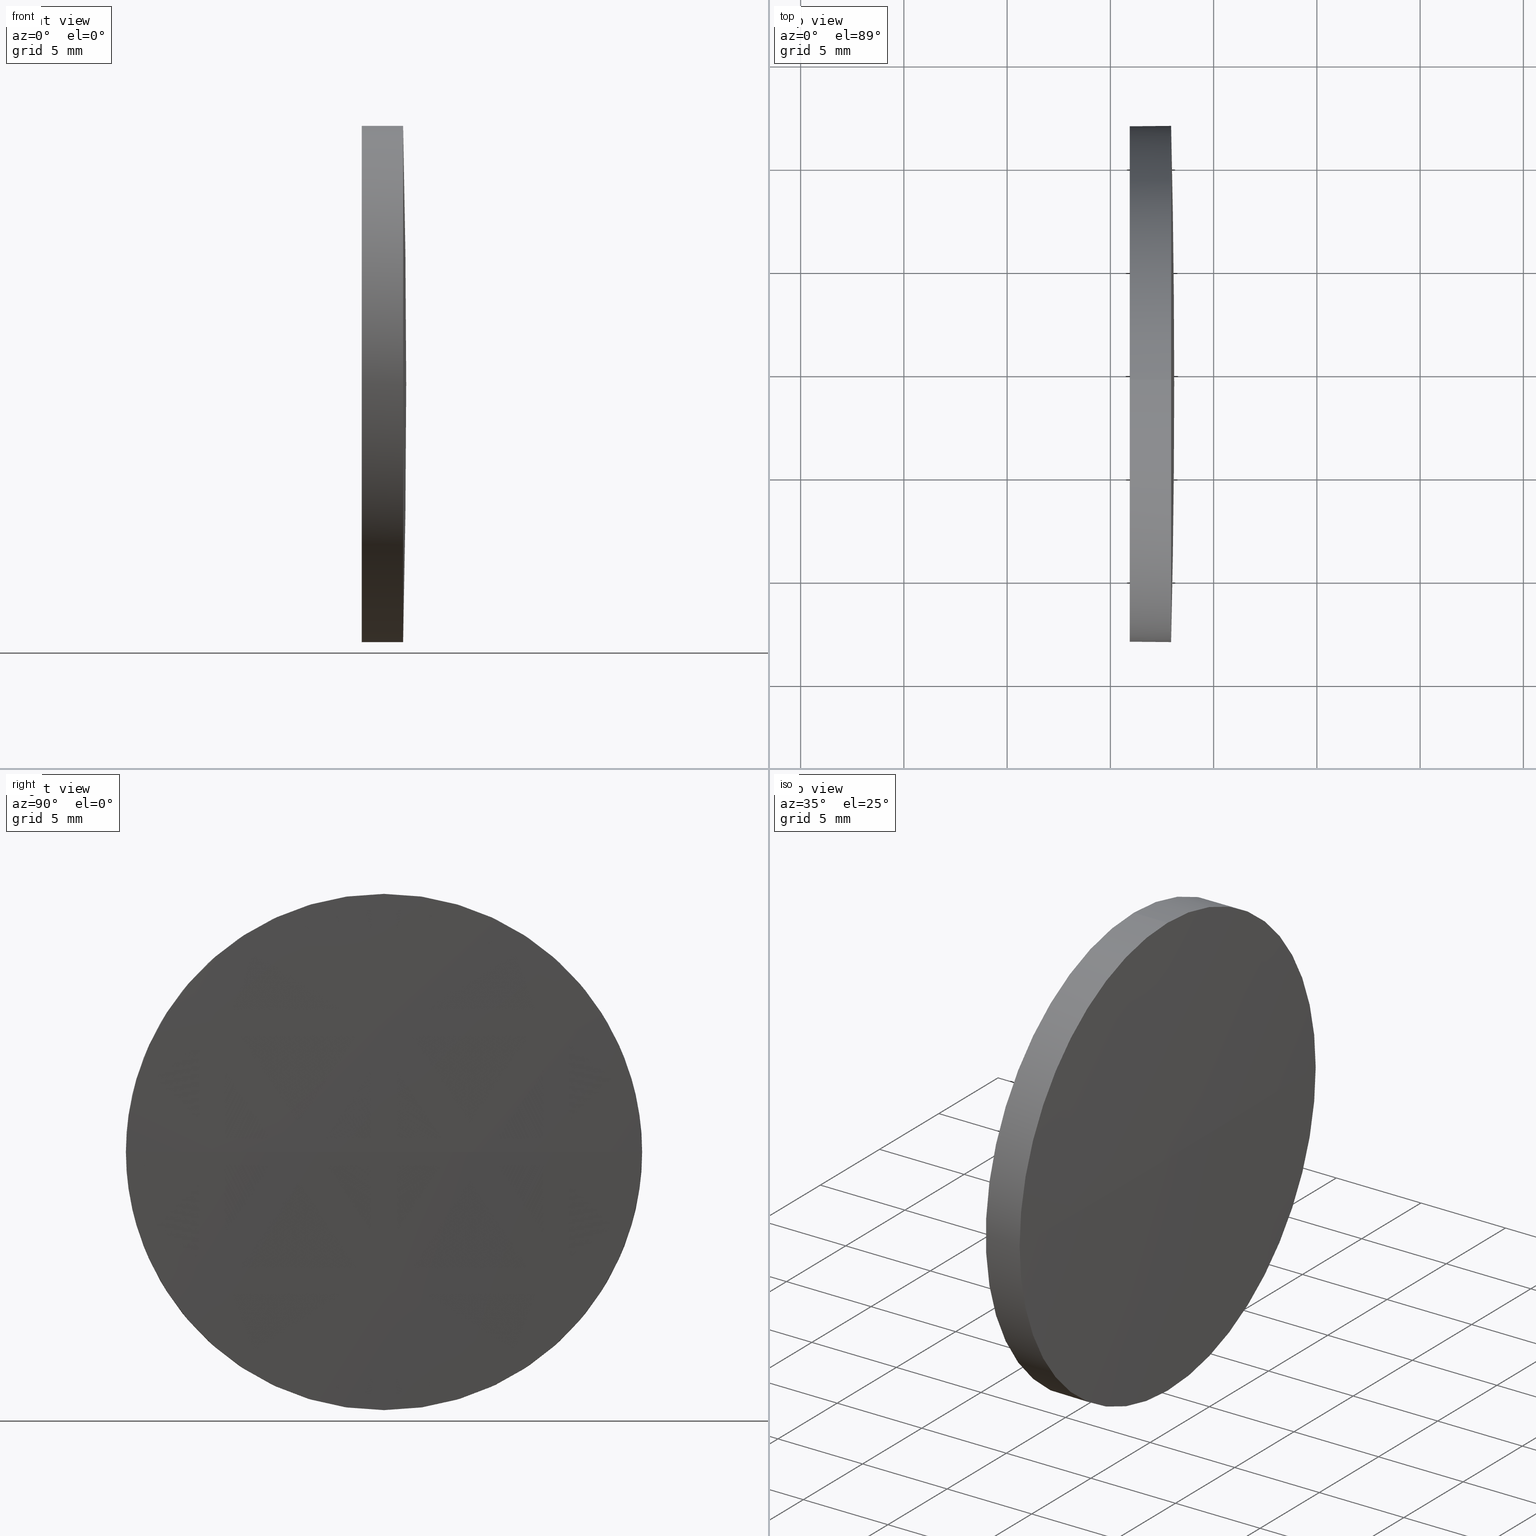
[diagram: canonical four-view strip — front | top / right | iso, engineering-drawing reading convention]
A machine part, canonical four-view strip (front | top / right | iso — engineering-drawing reading convention). The complete STEP part file that produces these views, byte-faithful:
ISO-10303-21;
HEADER;
FILE_DESCRIPTION (( 'STEP AP214' ),
    '1' );
FILE_NAME ('100226.STEP',
    '2019-05-24T05:51:30',
    ( '' ),
    ( '' ),
    'SwSTEP 2.0',
    'SolidWorks 2016',
    '' );
FILE_SCHEMA (( 'AUTOMOTIVE_DESIGN' ));
ENDSEC;

DATA;
#1 = CYLINDRICAL_SURFACE ( 'NONE', #9, 12.49999999999999600 ) ;
#2 = LINE ( 'NONE', #167, #177 ) ;
#3 = ORIENTED_EDGE ( 'NONE', *, *, #88, .T. ) ;
#4 = DIRECTION ( 'NONE',  ( 0.0000000000000000000, 0.0000000000000000000, 1.000000000000000000 ) ) ;
#5 = FACE_OUTER_BOUND ( 'NONE', #145, .T. ) ;
#6 = CARTESIAN_POINT ( 'NONE',  ( 342.9391285963631600, -50.57751368964579800, 0.0000000000000000000 ) ) ;
#7 = ORIENTED_EDGE ( 'NONE', *, *, #28, .T. ) ;
#8 = CARTESIAN_POINT ( 'NONE',  ( 338.9100210179261700, -50.57751368964579800, -12.49999999999999600 ) ) ;
#9 = AXIS2_PLACEMENT_3D ( 'NONE', #151, #165, #75 ) ;
#10 = PLANE ( 'NONE',  #51 ) ;
#11 =( LENGTH_UNIT ( ) NAMED_UNIT ( * ) SI_UNIT ( .MILLI., .METRE. ) );
#12 = EDGE_CURVE ( 'NONE', #13, #80, #130, .T. ) ;
#13 = VERTEX_POINT ( 'NONE', #74 ) ;
#14 = EDGE_CURVE ( 'NONE', #138, #103, #2, .T. ) ;
#15 = PRESENTATION_STYLE_ASSIGNMENT (( #142 ) ) ;
#16 = AXIS2_PLACEMENT_3D ( 'NONE', #90, #4, #93 ) ;
#17 = CARTESIAN_POINT ( 'NONE',  ( -177.8192047369750000, -50.57751368964469000, 0.0000000000000000000 ) ) ;
#18 = CARTESIAN_POINT ( 'NONE',  ( 340.9391285963631600, -50.57751368964579800, 0.0000000000000000000 ) ) ;
#19 = CARTESIAN_POINT ( 'NONE',  ( 342.9391285963631600, -50.57751368964579800, -12.49999999999999600 ) ) ;
#20 = ORIENTED_EDGE ( 'NONE', *, *, #162, .T. ) ;
#21 = DIRECTION ( 'NONE',  ( -1.000000000000000000, -0.0000000000000000000, -0.0000000000000000000 ) ) ;
#22 =( NAMED_UNIT ( * ) PLANE_ANGLE_UNIT ( ) SI_UNIT ( $, .RADIAN. ) );
#23 = DIRECTION ( 'NONE',  ( 0.0000000000000000000, -1.000000000000000000, -1.224646799147353200E-016 ) ) ;
#24 = LINE ( 'NONE', #8, #86 ) ;
#25 =( LENGTH_UNIT ( ) NAMED_UNIT ( * ) SI_UNIT ( .MILLI., .METRE. ) );
#26 = CARTESIAN_POINT ( 'NONE',  ( 340.9391285963631600, -50.57751368964579800, 0.0000000000000000000 ) ) ;
#27 = PRODUCT_DEFINITION_CONTEXT ( 'detailed design', #83, 'design' ) ;
#28 = EDGE_CURVE ( 'NONE', #109, #103, #32, .T. ) ;
#29 = SURFACE_STYLE_FILL_AREA ( #181 ) ;
#30 = UNCERTAINTY_MEASURE_WITH_UNIT (LENGTH_MEASURE( 1.000000000000000100E-005 ), #25, 'distance_accuracy_value', 'NONE');
#31 = AXIS2_PLACEMENT_3D ( 'NONE', #6, #91, #133 ) ;
#32 = CIRCLE ( 'NONE', #107, 12.49999999999999600 ) ;
#33 = ORIENTED_EDGE ( 'NONE', *, *, #162, .F. ) ;
#34 = CIRCLE ( 'NONE', #31, 12.49999999999999600 ) ;
#35 = DIRECTION ( 'NONE',  ( 0.0000000000000000000, -1.000000000000000000, 0.0000000000000000000 ) ) ;
#36 = DIRECTION ( 'NONE',  ( 0.0000000000000000000, 0.0000000000000000000, 1.000000000000000000 ) ) ;
#37 = ORIENTED_EDGE ( 'NONE', *, *, #58, .F. ) ;
#38 = CARTESIAN_POINT ( 'NONE',  ( 340.9391285963631600, -50.57751368964579800, 12.49999999999999600 ) ) ;
#39 =( LENGTH_UNIT ( ) NAMED_UNIT ( * ) SI_UNIT ( .MILLI., .METRE. ) );
#40 = ADVANCED_FACE ( 'NONE', ( #50 ), #1, .T. ) ;
#41 = SURFACE_SIDE_STYLE ('',( #134 ) ) ;
#42 = ORIENTED_EDGE ( 'NONE', *, *, #12, .F. ) ;
#43 = ADVANCED_FACE ( 'NONE', ( #100 ), #118, .T. ) ;
#44 =( NAMED_UNIT ( * ) SI_UNIT ( $, .STERADIAN. ) SOLID_ANGLE_UNIT ( ) );
#45 = ADVANCED_FACE ( 'NONE', ( #5 ), #72, .T. ) ;
#46 =( NAMED_UNIT ( * ) SI_UNIT ( $, .STERADIAN. ) SOLID_ANGLE_UNIT ( ) );
#47 = VERTEX_POINT ( 'NONE', #19 ) ;
#48 = PRODUCT_CONTEXT ( 'NONE', #67, 'mechanical' ) ;
#49 = EDGE_LOOP ( 'NONE', ( #56, #186, #52, #160, #164 ) ) ;
#50 = FACE_OUTER_BOUND ( 'NONE', #49, .T. ) ;
#51 = AXIS2_PLACEMENT_3D ( 'NONE', #26, #81, #115 ) ;
#52 = ORIENTED_EDGE ( 'NONE', *, *, #88, .F. ) ;
#53 = FACE_OUTER_BOUND ( 'NONE', #65, .T. ) ;
#54 = DIRECTION ( 'NONE',  ( -1.000000000000000000, -0.0000000000000000000, -0.0000000000000000000 ) ) ;
#55 = CARTESIAN_POINT ( 'NONE',  ( 342.9391285963631000, -63.07751368964461800, 0.0000000000000000000 ) ) ;
#56 = ORIENTED_EDGE ( 'NONE', *, *, #176, .T. ) ;
#57 = PRODUCT ( '100226', '100226', '', ( #48 ) ) ;
#58 = EDGE_CURVE ( 'NONE', #47, #80, #149, .T. ) ;
#59 = ORIENTED_EDGE ( 'NONE', *, *, #28, .F. ) ;
#60 = DIRECTION ( 'NONE',  ( 0.0000000000000000000, 0.0000000000000000000, 1.000000000000000000 ) ) ;
#61 = PRESENTATION_LAYER_ASSIGNMENT (  '', '', ( #135 ) ) ;
#62 = COLOUR_RGB ( '',1.000000000000000000, 1.000000000000000000, 1.000000000000000000 ) ;
#63 = DIRECTION ( 'NONE',  ( 0.0000000000000000000, 0.0000000000000000000, 1.000000000000000000 ) ) ;
#64 = ADVANCED_BREP_SHAPE_REPRESENTATION ( '100226', ( #102, #104 ), #108 ) ;
#65 = EDGE_LOOP ( 'NONE', ( #147, #70, #20, #85, #59 ) ) ;
#66 = DIRECTION ( 'NONE',  ( -1.000000000000000000, -0.0000000000000000000, -0.0000000000000000000 ) ) ;
#67 = APPLICATION_CONTEXT ( 'automotive_design' ) ;
#68 = ORIENTED_EDGE ( 'NONE', *, *, #73, .F. ) ;
#69 = DIRECTION ( 'NONE',  ( 0.0000000000000000000, 0.0000000000000000000, 1.000000000000000000 ) ) ;
#70 = ORIENTED_EDGE ( 'NONE', *, *, #58, .T. ) ;
#71 = UNCERTAINTY_MEASURE_WITH_UNIT (LENGTH_MEASURE( 1.000000000000000100E-005 ), #39, 'distance_accuracy_value', 'NONE');
#72 = SPHERICAL_SURFACE ( 'NONE', #178, 520.9083333333380800 ) ;
#73 = EDGE_CURVE ( 'NONE', #138, #127, #34, .T. ) ;
#74 = CARTESIAN_POINT ( 'NONE',  ( 343.0891285963630800, -50.57751368964471800, 0.0000000000000000000 ) ) ;
#75 = DIRECTION ( 'NONE',  ( 0.0000000000000000000, 0.0000000000000000000, 1.000000000000000000 ) ) ;
#76 = CLOSED_SHELL ( 'NONE', ( #40, #43, #45, #170, #172 ) ) ;
#77 = CARTESIAN_POINT ( 'NONE',  ( -177.8192047369750000, -50.57751368964469000, 0.0000000000000000000 ) ) ;
#78 = APPLICATION_PROTOCOL_DEFINITION ( 'draft international standard', 'automotive_design', 1998, #67 ) ;
#79 = CARTESIAN_POINT ( 'NONE',  ( 342.9391285963631600, -50.57751368964579800, 0.0000000000000000000 ) ) ;
#80 = VERTEX_POINT ( 'NONE', #55 ) ;
#81 = DIRECTION ( 'NONE',  ( 1.000000000000000000, 0.0000000000000000000, 0.0000000000000000000 ) ) ;
#82 =( NAMED_UNIT ( * ) PLANE_ANGLE_UNIT ( ) SI_UNIT ( $, .RADIAN. ) );
#83 = APPLICATION_CONTEXT ( 'automotive_design' ) ;
#84 = DIRECTION ( 'NONE',  ( 1.000000000000000000, 0.0000000000000000000, 0.0000000000000000000 ) ) ;
#85 = ORIENTED_EDGE ( 'NONE', *, *, #14, .T. ) ;
#86 = VECTOR ( 'NONE', #158, 1000.000000000000000 ) ;
#87 = AXIS2_PLACEMENT_3D ( 'NONE', #143, #111, #98 ) ;
#88 = EDGE_CURVE ( 'NONE', #103, #109, #152, .T. ) ;
#89 = SURFACE_SIDE_STYLE ('',( #29 ) ) ;
#90 = CARTESIAN_POINT ( 'NONE',  ( -177.8192047369750000, -50.57751368964469000, 0.0000000000000000000 ) ) ;
#91 = DIRECTION ( 'NONE',  ( -1.000000000000000000, -0.0000000000000000000, -0.0000000000000000000 ) ) ;
#92 = STYLED_ITEM ( 'NONE', ( #168 ), #64 ) ;
#93 = DIRECTION ( 'NONE',  ( 0.0000000000000000000, -1.000000000000000000, 0.0000000000000000000 ) ) ;
#94 = DIRECTION ( 'NONE',  ( 0.0000000000000000000, -1.224646799147353200E-016, 1.000000000000000000 ) ) ;
#95 = DIRECTION ( 'NONE',  ( 0.0000000000000000000, 0.0000000000000000000, 1.000000000000000000 ) ) ;
#96 = AXIS2_PLACEMENT_3D ( 'NONE', #159, #94, #23 ) ;
#97 = FACE_OUTER_BOUND ( 'NONE', #179, .T. ) ;
#98 = DIRECTION ( 'NONE',  ( 0.0000000000000000000, 0.0000000000000000000, 1.000000000000000000 ) ) ;
#99 = AXIS2_PLACEMENT_3D ( 'NONE', #79, #66, #116 ) ;
#100 = FACE_OUTER_BOUND ( 'NONE', #157, .T. ) ;
#101 = PRODUCT_DEFINITION_FORMATION_WITH_SPECIFIED_SOURCE ( '�κ�', '', #57, .NOT_KNOWN. ) ;
#102 = MANIFOLD_SOLID_BREP ( '��ת1', #76 ) ;
#103 = VERTEX_POINT ( 'NONE', #38 ) ;
#104 = AXIS2_PLACEMENT_3D ( 'NONE', #184, #69, #84 ) ;
#105 = ORIENTED_EDGE ( 'NONE', *, *, #12, .T. ) ;
#106 = PRESENTATION_LAYER_ASSIGNMENT (  '', '', ( #92 ) ) ;
#107 = AXIS2_PLACEMENT_3D ( 'NONE', #155, #54, #60 ) ;
#108 =( GEOMETRIC_REPRESENTATION_CONTEXT ( 3 ) GLOBAL_UNCERTAINTY_ASSIGNED_CONTEXT ( ( #30 ) ) GLOBAL_UNIT_ASSIGNED_CONTEXT ( ( #25, #82, #44 ) ) REPRESENTATION_CONTEXT ( 'NONE', 'WORKASPACE' ) );
#109 = VERTEX_POINT ( 'NONE', #180 ) ;
#110 = DIRECTION ( 'NONE',  ( 0.0000000000000000000, 0.0000000000000000000, 1.000000000000000000 ) ) ;
#111 = DIRECTION ( 'NONE',  ( -1.000000000000000000, -0.0000000000000000000, -0.0000000000000000000 ) ) ;
#112 = CIRCLE ( 'NONE', #96, 520.9083333333380800 ) ;
#113 = COLOUR_RGB ( '',1.000000000000000000, 1.000000000000000000, 1.000000000000000000 ) ;
#114 = CARTESIAN_POINT ( 'NONE',  ( 342.9391285963631000, -38.07751368964586200, 1.530808498934047600E-015 ) ) ;
#115 = DIRECTION ( 'NONE',  ( 0.0000000000000000000, 0.0000000000000000000, -1.000000000000000000 ) ) ;
#116 = DIRECTION ( 'NONE',  ( 0.0000000000000000000, 0.0000000000000000000, 1.000000000000000000 ) ) ;
#117 = MECHANICAL_DESIGN_GEOMETRIC_PRESENTATION_REPRESENTATION (  '', ( #92 ), #125 ) ;
#118 = SPHERICAL_SURFACE ( 'NONE', #16, 520.9083333333380800 ) ;
#119 = SHAPE_DEFINITION_REPRESENTATION ( #124, #64 ) ;
#120 = AXIS2_PLACEMENT_3D ( 'NONE', #128, #21, #95 ) ;
#121 = EDGE_CURVE ( 'NONE', #13, #127, #112, .T. ) ;
#122 = DIRECTION ( 'NONE',  ( 0.0000000000000000000, 0.0000000000000000000, -1.000000000000000000 ) ) ;
#123 = DIRECTION ( 'NONE',  ( -1.000000000000000000, -0.0000000000000000000, -0.0000000000000000000 ) ) ;
#124 = PRODUCT_DEFINITION_SHAPE ( 'NONE', 'NONE',  #146 ) ;
#125 =( GEOMETRIC_REPRESENTATION_CONTEXT ( 3 ) GLOBAL_UNCERTAINTY_ASSIGNED_CONTEXT ( ( #71 ) ) GLOBAL_UNIT_ASSIGNED_CONTEXT ( ( #39, #156, #140 ) ) REPRESENTATION_CONTEXT ( 'NONE', 'WORKASPACE' ) );
#126 = SURFACE_STYLE_USAGE ( .BOTH. , #41 ) ;
#127 = VERTEX_POINT ( 'NONE', #114 ) ;
#128 = CARTESIAN_POINT ( 'NONE',  ( 338.9100210179261700, -50.57751368964579800, 0.0000000000000000000 ) ) ;
#129 = AXIS2_PLACEMENT_3D ( 'NONE', #18, #153, #63 ) ;
#130 = CIRCLE ( 'NONE', #169, 520.9083333333380800 ) ;
#131 = EDGE_CURVE ( 'NONE', #47, #109, #24, .T. ) ;
#132 = CIRCLE ( 'NONE', #87, 12.49999999999999600 ) ;
#133 = DIRECTION ( 'NONE',  ( 0.0000000000000000000, 0.0000000000000000000, 1.000000000000000000 ) ) ;
#134 = SURFACE_STYLE_FILL_AREA ( #182 ) ;
#135 = STYLED_ITEM ( 'NONE', ( #15 ), #102 ) ;
#136 = FILL_AREA_STYLE_COLOUR ( '', #62 ) ;
#137 = DIRECTION ( 'NONE',  ( -1.000000000000000000, 0.0000000000000000000, 0.0000000000000000000 ) ) ;
#138 = VERTEX_POINT ( 'NONE', #185 ) ;
#139 = FILL_AREA_STYLE_COLOUR ( '', #113 ) ;
#140 =( NAMED_UNIT ( * ) SI_UNIT ( $, .STERADIAN. ) SOLID_ANGLE_UNIT ( ) );
#141 = ORIENTED_EDGE ( 'NONE', *, *, #176, .F. ) ;
#142 = SURFACE_STYLE_USAGE ( .BOTH. , #89 ) ;
#143 = CARTESIAN_POINT ( 'NONE',  ( 342.9391285963631600, -50.57751368964579800, 0.0000000000000000000 ) ) ;
#144 = PRODUCT_RELATED_PRODUCT_CATEGORY ( 'part', '', ( #57 ) ) ;
#145 = EDGE_LOOP ( 'NONE', ( #183, #105, #37, #141 ) ) ;
#146 = PRODUCT_DEFINITION ( 'δ֪', '', #101, #27 ) ;
#147 = ORIENTED_EDGE ( 'NONE', *, *, #131, .F. ) ;
#148 = UNCERTAINTY_MEASURE_WITH_UNIT (LENGTH_MEASURE( 1.000000000000000100E-005 ), #11, 'distance_accuracy_value', 'NONE');
#149 = CIRCLE ( 'NONE', #154, 12.49999999999999600 ) ;
#150 = CARTESIAN_POINT ( 'NONE',  ( 342.9391285963631600, -50.57751368964579800, 0.0000000000000000000 ) ) ;
#151 = CARTESIAN_POINT ( 'NONE',  ( 338.9100210179261700, -50.57751368964579800, 0.0000000000000000000 ) ) ;
#152 = CIRCLE ( 'NONE', #129, 12.49999999999999600 ) ;
#153 = DIRECTION ( 'NONE',  ( -1.000000000000000000, -0.0000000000000000000, -0.0000000000000000000 ) ) ;
#154 = AXIS2_PLACEMENT_3D ( 'NONE', #150, #123, #36 ) ;
#155 = CARTESIAN_POINT ( 'NONE',  ( 340.9391285963631600, -50.57751368964579800, 0.0000000000000000000 ) ) ;
#156 =( NAMED_UNIT ( * ) PLANE_ANGLE_UNIT ( ) SI_UNIT ( $, .RADIAN. ) );
#157 = EDGE_LOOP ( 'NONE', ( #42, #161, #68, #33 ) ) ;
#158 = DIRECTION ( 'NONE',  ( -1.000000000000000000, -0.0000000000000000000, -0.0000000000000000000 ) ) ;
#159 = CARTESIAN_POINT ( 'NONE',  ( -177.8192047369750000, -50.57751368964469000, 0.0000000000000000000 ) ) ;
#160 = ORIENTED_EDGE ( 'NONE', *, *, #14, .F. ) ;
#161 = ORIENTED_EDGE ( 'NONE', *, *, #121, .T. ) ;
#162 = EDGE_CURVE ( 'NONE', #80, #138, #132, .T. ) ;
#163 = MECHANICAL_DESIGN_GEOMETRIC_PRESENTATION_REPRESENTATION (  '', ( #135 ), #174 ) ;
#164 = ORIENTED_EDGE ( 'NONE', *, *, #73, .T. ) ;
#165 = DIRECTION ( 'NONE',  ( -1.000000000000000000, -0.0000000000000000000, -0.0000000000000000000 ) ) ;
#166 = DIRECTION ( 'NONE',  ( -1.000000000000000000, -0.0000000000000000000, -0.0000000000000000000 ) ) ;
#167 = CARTESIAN_POINT ( 'NONE',  ( 338.9100210179261700, -50.57751368964579800, 12.49999999999999600 ) ) ;
#168 = PRESENTATION_STYLE_ASSIGNMENT (( #126 ) ) ;
#169 = AXIS2_PLACEMENT_3D ( 'NONE', #17, #122, #137 ) ;
#170 = ADVANCED_FACE ( 'NONE', ( #53 ), #175, .T. ) ;
#171 = CIRCLE ( 'NONE', #99, 12.49999999999999600 ) ;
#172 = ADVANCED_FACE ( 'NONE', ( #97 ), #10, .F. ) ;
#173 = APPLICATION_PROTOCOL_DEFINITION ( 'draft international standard', 'automotive_design', 1998, #83 ) ;
#174 =( GEOMETRIC_REPRESENTATION_CONTEXT ( 3 ) GLOBAL_UNCERTAINTY_ASSIGNED_CONTEXT ( ( #148 ) ) GLOBAL_UNIT_ASSIGNED_CONTEXT ( ( #11, #22, #46 ) ) REPRESENTATION_CONTEXT ( 'NONE', 'WORKASPACE' ) );
#175 = CYLINDRICAL_SURFACE ( 'NONE', #120, 12.49999999999999600 ) ;
#176 = EDGE_CURVE ( 'NONE', #127, #47, #171, .T. ) ;
#177 = VECTOR ( 'NONE', #166, 1000.000000000000000 ) ;
#178 = AXIS2_PLACEMENT_3D ( 'NONE', #77, #110, #35 ) ;
#179 = EDGE_LOOP ( 'NONE', ( #3, #7 ) ) ;
#180 = CARTESIAN_POINT ( 'NONE',  ( 340.9391285963631600, -50.57751368964579800, -12.49999999999999600 ) ) ;
#181 = FILL_AREA_STYLE ('',( #136 ) ) ;
#182 = FILL_AREA_STYLE ('',( #139 ) ) ;
#183 = ORIENTED_EDGE ( 'NONE', *, *, #121, .F. ) ;
#184 = CARTESIAN_POINT ( 'NONE',  ( 0.0000000000000000000, 0.0000000000000000000, 0.0000000000000000000 ) ) ;
#185 = CARTESIAN_POINT ( 'NONE',  ( 342.9391285963631600, -50.57751368964579800, 12.49999999999999600 ) ) ;
#186 = ORIENTED_EDGE ( 'NONE', *, *, #131, .T. ) ;
ENDSEC;
END-ISO-10303-21;
